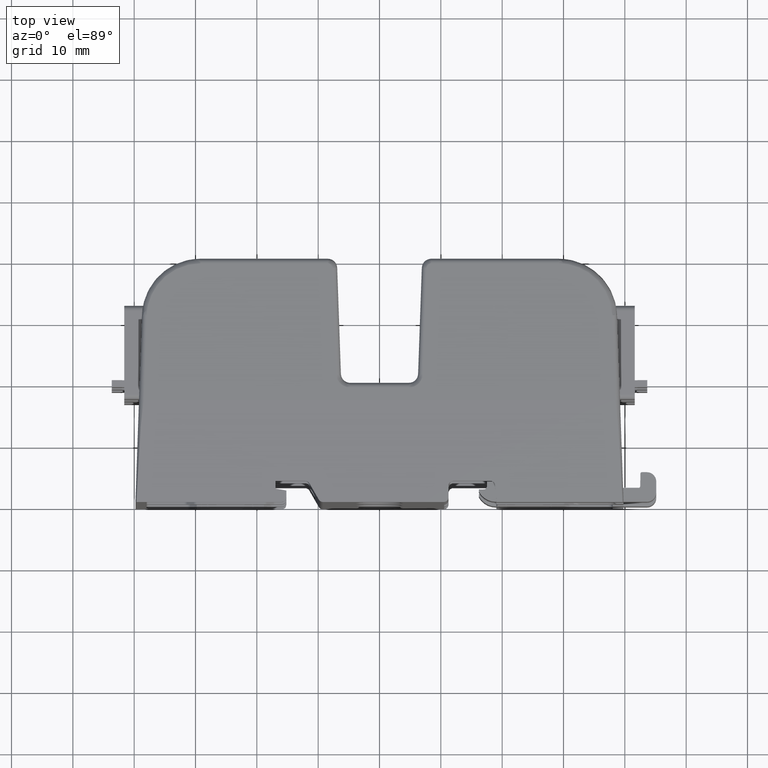
[diagram: clean part render]
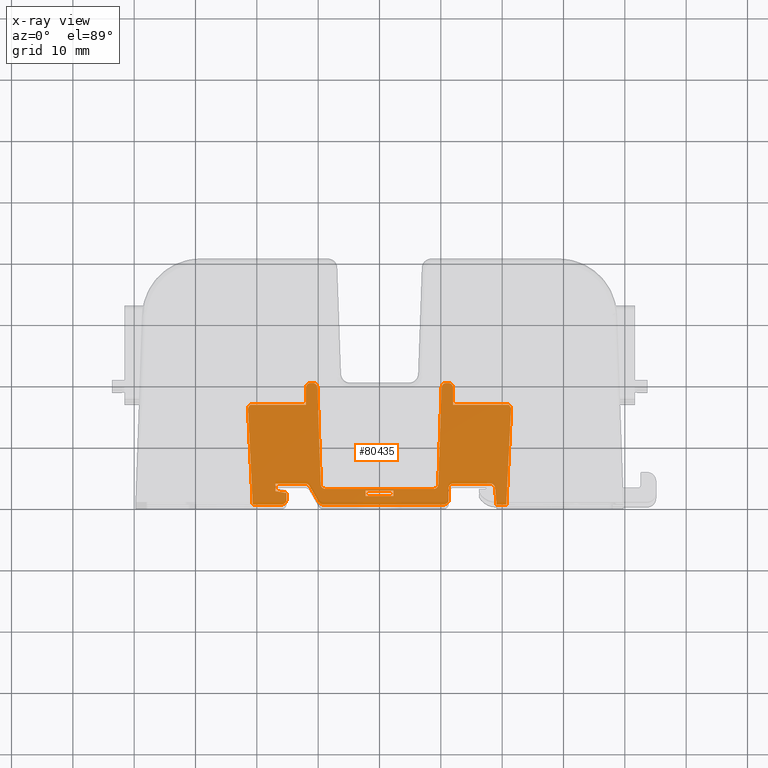
[diagram: x-ray — body ghosted, one internal face saturated and labeled with its STEP entity id]
A machine part, top view, then the same camera in x-ray: the body is ghosted and one INTERNAL B-rep face — a face not visible from any outside direction — is saturated and labeled: STEP entity #80435.
In plain terms, the highlighted planar face has unit normal (0, 0, -1).
Its self-contained STEP definition (entity closure, byte-faithful):
#1554 = EDGE_CURVE ( 'NONE', #28954, #16335, #105713, .T. ) ;
#1703 = CARTESIAN_POINT ( 'NONE',  ( 0.4729999999999999800, 0.1050000000000005400, -0.4840000000000001000 ) ) ;
#1868 = VERTEX_POINT ( 'NONE', #63186 ) ;
#2291 = EDGE_CURVE ( 'NONE', #42022, #96422, #143983, .T. ) ;
#2678 = CARTESIAN_POINT ( 'NONE',  ( 0.4429999999999999500, 0.6570000000000000300, -0.4840000000000001000 ) ) ;
#3123 = ORIENTED_EDGE ( 'NONE', *, *, #61029, .T. ) ;
#3698 = DIRECTION ( 'NONE',  ( -1.000000000000000000, 0.0000000000000000000, 0.0000000000000000000 ) ) ;
#4396 = LINE ( 'NONE', #117037, #34462 ) ;
#4732 = ORIENTED_EDGE ( 'NONE', *, *, #81388, .T. ) ;
#4996 = EDGE_CURVE ( 'NONE', #120095, #60454, #139707, .T. ) ;
#5239 = CARTESIAN_POINT ( 'NONE',  ( -0.4287167864986007300, 0.7799999999999996900, -0.4840000000000001000 ) ) ;
#5605 = DIRECTION ( 'NONE',  ( 0.0000000000000000000, 1.000000000000000000, 0.0000000000000000000 ) ) ;
#5805 = CARTESIAN_POINT ( 'NONE',  ( -0.8294316909269459100, 0.6400000000000000100, -0.4840000000000001000 ) ) ;
#6162 = AXIS2_PLACEMENT_3D ( 'NONE', #94046, #26275, #105451 ) ;
#6207 = CARTESIAN_POINT ( 'NONE',  ( 0.4719999999999999200, 0.7799999999999996900, -0.4840000000000001000 ) ) ;
#6665 = DIRECTION ( 'NONE',  ( 0.0000000000000000000, 0.0000000000000000000, -1.000000000000000000 ) ) ;
#7552 = CIRCLE ( 'NONE', #107451, 0.03000000000000002300 ) ;
#8727 = VECTOR ( 'NONE', #130806, 39.37007874015748100 ) ;
#9827 = VERTEX_POINT ( 'NONE', #132897 ) ;
#10054 = CARTESIAN_POINT ( 'NONE',  ( -0.3636794919243111500, 3.414809992080329000E-017, -0.4840000000000001000 ) ) ;
#10184 = EDGE_CURVE ( 'NONE', #118134, #66096, #104791, .T. ) ;
#10679 = VECTOR ( 'NONE', #143482, 39.37007874015748100 ) ;
#10991 = DIRECTION ( 'NONE',  ( -0.0000000000000000000, -0.0000000000000000000, 1.000000000000000000 ) ) ;
#11359 = VERTEX_POINT ( 'NONE', #97804 ) ;
#11376 = CARTESIAN_POINT ( 'NONE',  ( 0.08999999999999994100, 0.08899999999999982900, -0.4840000000000001000 ) ) ;
#13056 = DIRECTION ( 'NONE',  ( -1.000000000000000000, 0.0000000000000000000, 0.0000000000000000000 ) ) ;
#13221 = VERTEX_POINT ( 'NONE', #25499 ) ;
#13389 = CARTESIAN_POINT ( 'NONE',  ( -0.09000000000000005200, 0.08899999999999982900, -0.4840000000000001000 ) ) ;
#13500 = LINE ( 'NONE', #113197, #73643 ) ;
#13636 = CIRCLE ( 'NONE', #60235, 0.03000000000000002300 ) ;
#13720 = ORIENTED_EDGE ( 'NONE', *, *, #63365, .T. ) ;
#14055 = EDGE_CURVE ( 'NONE', #124613, #9827, #119136, .T. ) ;
#14151 = AXIS2_PLACEMENT_3D ( 'NONE', #74381, #6665, #85789 ) ;
#14738 = LINE ( 'NONE', #39213, #131560 ) ;
#14745 = ORIENTED_EDGE ( 'NONE', *, *, #129789, .T. ) ;
#15379 = VECTOR ( 'NONE', #87525, 39.37007874015748900 ) ;
#15409 = VERTEX_POINT ( 'NONE', #110213 ) ;
#16295 = CARTESIAN_POINT ( 'NONE',  ( -0.3470293367557876800, 0.1000000000000000500, -0.4840000000000001000 ) ) ;
#16335 = VERTEX_POINT ( 'NONE', #35645 ) ;
#17065 = CARTESIAN_POINT ( 'NONE',  ( -0.3987350616880282500, 0.7510469849010748000, -0.4840000000000001000 ) ) ;
#17424 = ORIENTED_EDGE ( 'NONE', *, *, #69208, .F. ) ;
#17521 = PLANE ( 'NONE',  #14151 ) ;
#17772 = DIRECTION ( 'NONE',  ( 1.000000000000000000, 0.0000000000000000000, 0.0000000000000000000 ) ) ;
#17871 = EDGE_CURVE ( 'NONE', #108640, #42022, #13636, .T. ) ;
#18053 = DIRECTION ( 'NONE',  ( 1.000000000000000000, 0.0000000000000000000, 0.0000000000000000000 ) ) ;
#18162 = CARTESIAN_POINT ( 'NONE',  ( 0.4419999999999998900, 0.7799999999999996900, -0.4840000000000001000 ) ) ;
#19452 = DIRECTION ( 'NONE',  ( -1.000000000000000000, -0.0000000000000000000, -0.0000000000000000000 ) ) ;
#20178 = CARTESIAN_POINT ( 'NONE',  ( -0.4720000000000000300, 0.6399999999999996800, -0.4840000000000001000 ) ) ;
#20296 = EDGE_CURVE ( 'NONE', #35639, #13221, #144172, .T. ) ;
#21326 = VERTEX_POINT ( 'NONE', #46580 ) ;
#22191 = CARTESIAN_POINT ( 'NONE',  ( 0.4719999999999999200, 0.7499999999999997800, -0.4840000000000001000 ) ) ;
#22479 = EDGE_CURVE ( 'NONE', #76344, #141496, #46259, .T. ) ;
#23130 = CARTESIAN_POINT ( 'NONE',  ( -0.4720000000000000300, 0.7499999999999997800, -0.4840000000000001000 ) ) ;
#24765 = DIRECTION ( 'NONE',  ( -0.0000000000000000000, 1.000000000000000000, -0.0000000000000000000 ) ) ;
#25499 = CARTESIAN_POINT ( 'NONE',  ( 0.8294316909269456900, 0.6400000000000000100, -0.4840000000000001000 ) ) ;
#26087 = DIRECTION ( 'NONE',  ( 1.000000000000000000, 0.0000000000000000000, 0.0000000000000000000 ) ) ;
#26275 = DIRECTION ( 'NONE',  ( 0.0000000000000000000, 0.0000000000000000000, -1.000000000000000000 ) ) ;
#27651 = CARTESIAN_POINT ( 'NONE',  ( 0.4719999999999999200, 0.6399999999999996800, -0.4840000000000001000 ) ) ;
#27726 = CIRCLE ( 'NONE', #62372, 0.03000000000000002300 ) ;
#27990 = CARTESIAN_POINT ( 'NONE',  ( 0.4287167864986007300, 0.7499999999999997800, -0.4840000000000001000 ) ) ;
#28954 = VERTEX_POINT ( 'NONE', #140425 ) ;
#29507 = ORIENTED_EDGE ( 'NONE', *, *, #98379, .F. ) ;
#30254 = ORIENTED_EDGE ( 'NONE', *, *, #14055, .T. ) ;
#30881 = EDGE_CURVE ( 'NONE', #15409, #106694, #13500, .T. ) ;
#30956 = EDGE_CURVE ( 'NONE', #90542, #13221, #64972, .T. ) ;
#31793 = CIRCLE ( 'NONE', #122397, 0.03000000000000002300 ) ;
#32065 = ORIENTED_EDGE ( 'NONE', *, *, #1554, .T. ) ;
#32900 = DIRECTION ( 'NONE',  ( -0.0000000000000000000, -0.0000000000000000000, 1.000000000000000000 ) ) ;
#33249 = DIRECTION ( 'NONE',  ( -0.0000000000000000000, -0.0000000000000000000, 1.000000000000000000 ) ) ;
#33603 = ORIENTED_EDGE ( 'NONE', *, *, #144572, .T. ) ;
#33710 = EDGE_CURVE ( 'NONE', #120095, #137839, #74375, .T. ) ;
#34212 = ORIENTED_EDGE ( 'NONE', *, *, #107886, .T. ) ;
#34462 = VECTOR ( 'NONE', #82791, 39.37007874015748100 ) ;
#35639 = VERTEX_POINT ( 'NONE', #145602 ) ;
#35645 = CARTESIAN_POINT ( 'NONE',  ( 0.7510000000000000000, 6.017718913256016400E-016, -0.4840000000000001000 ) ) ;
#36788 = CARTESIAN_POINT ( 'NONE',  ( -0.8139246220590630200, 3.414809992080329000E-017, -0.4840000000000001000 ) ) ;
#36891 = DIRECTION ( 'NONE',  ( 0.0000000000000000000, 0.0000000000000000000, -1.000000000000000000 ) ) ;
#37383 = VECTOR ( 'NONE', #19452, 39.37007874015748100 ) ;
#38392 = LINE ( 'NONE', #95356, #95079 ) ;
#39213 = CARTESIAN_POINT ( 'NONE',  ( -0.5980000000000000900, 0.6570000000000000300, -0.4840000000000001000 ) ) ;
#39343 = DIRECTION ( 'NONE',  ( -1.000000000000000000, 0.0000000000000000000, 0.0000000000000000000 ) ) ;
#39436 = CARTESIAN_POINT ( 'NONE',  ( -0.6680000000000000400, 0.1350000000000003100, -0.4840000000000001000 ) ) ;
#39740 = VECTOR ( 'NONE', #76811, 39.37007874015748100 ) ;
#40229 = CARTESIAN_POINT ( 'NONE',  ( -0.4720000000000000300, 0.7799999999999996900, -0.4840000000000001000 ) ) ;
#40532 = CARTESIAN_POINT ( 'NONE',  ( -0.3636794919243111500, 0.03000000000000003400, -0.4840000000000001000 ) ) ;
#40620 = ORIENTED_EDGE ( 'NONE', *, *, #45484, .T. ) ;
#40678 = DIRECTION ( 'NONE',  ( 0.0000000000000000000, 0.0000000000000000000, -1.000000000000000000 ) ) ;
#41179 = VERTEX_POINT ( 'NONE', #39436 ) ;
#41383 = CARTESIAN_POINT ( 'NONE',  ( 0.8480670914032886200, 0.6913470679808947400, -0.4840000000000001000 ) ) ;
#41446 = CARTESIAN_POINT ( 'NONE',  ( -0.3770110615663609900, 0.1289530150989249600, -0.4840000000000001000 ) ) ;
#41567 = EDGE_CURVE ( 'NONE', #106694, #11359, #65887, .T. ) ;
#41962 = EDGE_CURVE ( 'NONE', #21326, #113728, #94097, .T. ) ;
#42022 = VERTEX_POINT ( 'NONE', #10054 ) ;
#42647 = CARTESIAN_POINT ( 'NONE',  ( -0.8360173988094451400, 0.6335520826327228900, -0.4840000000000001000 ) ) ;
#42905 = CARTESIAN_POINT ( 'NONE',  ( 0.3770110615663606600, 0.1289530150989250100, -0.4840000000000001000 ) ) ;
#43465 = ORIENTED_EDGE ( 'NONE', *, *, #33710, .F. ) ;
#43502 = CARTESIAN_POINT ( 'NONE',  ( 0.8360167133168319200, 0.6335529157044670300, -0.4839999999999998700 ) ) ;
#44711 = LINE ( 'NONE', #63340, #101407 ) ;
#44950 = VECTOR ( 'NONE', #52752, 39.37007874015748100 ) ;
#45210 = LINE ( 'NONE', #135123, #128418 ) ;
#45376 = LINE ( 'NONE', #52881, #102075 ) ;
#45484 = EDGE_CURVE ( 'NONE', #116642, #108640, #44711, .T. ) ;
#46013 = ORIENTED_EDGE ( 'NONE', *, *, #109696, .T. ) ;
#46229 = VERTEX_POINT ( 'NONE', #101344 ) ;
#46259 = CIRCLE ( 'NONE', #93480, 0.03000000000000002300 ) ;
#46580 = CARTESIAN_POINT ( 'NONE',  ( 0.08999999999999994100, 0.05400000000000003400, -0.4840000000000001000 ) ) ;
#46706 = DIRECTION ( 'NONE',  ( 1.000000000000000000, -0.0000000000000000000, 0.0000000000000000000 ) ) ;
#47403 = VERTEX_POINT ( 'NONE', #122239 ) ;
#47418 = CARTESIAN_POINT ( 'NONE',  ( -0.5980000000000000900, 0.02999999999999998800, -0.4840000000000001000 ) ) ;
#48215 = CARTESIAN_POINT ( 'NONE',  ( -1.566500000000000400, 3.414809992080329000E-017, -0.4840000000000001000 ) ) ;
#48473 = LINE ( 'NONE', #41383, #44950 ) ;
#48605 = VERTEX_POINT ( 'NONE', #81713 ) ;
#49155 = VERTEX_POINT ( 'NONE', #47418 ) ;
#49694 = CARTESIAN_POINT ( 'NONE',  ( -0.4420000000000000000, 0.7799999999999996900, -0.4840000000000001000 ) ) ;
#50004 = EDGE_CURVE ( 'NONE', #76344, #106445, #129892, .T. ) ;
#50125 = CARTESIAN_POINT ( 'NONE',  ( 0.4419999999999998900, 0.7499999999999997800, -0.4840000000000001000 ) ) ;
#50340 = CARTESIAN_POINT ( 'NONE',  ( 0.4730000000000000300, 0.1350000000000005400, -0.4840000000000001000 ) ) ;
#51654 = ORIENTED_EDGE ( 'NONE', *, *, #84419, .T. ) ;
#51858 = CARTESIAN_POINT ( 'NONE',  ( -0.09000000000000017700, 0.08899999999999982900, -0.4840000000000001000 ) ) ;
#51874 = DIRECTION ( 'NONE',  ( -1.000000000000000000, 0.0000000000000000000, 0.0000000000000000000 ) ) ;
#52752 = DIRECTION ( 'NONE',  ( 0.04932531220227795400, 0.9987827659587182900, 0.0000000000000000000 ) ) ;
#52802 = CARTESIAN_POINT ( 'NONE',  ( 0.4129999999999998700, 0.03000000000000003400, -0.4840000000000001000 ) ) ;
#52881 = CARTESIAN_POINT ( 'NONE',  ( -0.6680000000000014800, 0.6569999999999938100, -0.4840000000000001000 ) ) ;
#53383 = CARTESIAN_POINT ( 'NONE',  ( 0.6999769348979284500, 0.5831963027638829000, -0.4840000000000001000 ) ) ;
#53480 = ORIENTED_EDGE ( 'NONE', *, *, #75781, .T. ) ;
#53506 = CARTESIAN_POINT ( 'NONE',  ( -0.8331000808981733300, 0.6370878541714241100, -0.4839999999999999300 ) ) ;
#54020 = CARTESIAN_POINT ( 'NONE',  ( -0.8426502180722170700, 0.6212386858823721900, -0.4840000000000001000 ) ) ;
#54593 = DIRECTION ( 'NONE',  ( -0.9848077530122085800, 0.1736481776669269500, 0.0000000000000000000 ) ) ;
#54836 = CARTESIAN_POINT ( 'NONE',  ( 0.8294316909269456900, 0.6400000000000000100, -0.4840000000000001000 ) ) ;
#55197 = CIRCLE ( 'NONE', #141175, 0.02999999999999995400 ) ;
#57261 = VECTOR ( 'NONE', #26087, 39.37007874015748100 ) ;
#57337 = VERTEX_POINT ( 'NONE', #51858 ) ;
#58110 = CARTESIAN_POINT ( 'NONE',  ( 1.543557054443924300, 0.6400000000000000100, -0.4840000000000001000 ) ) ;
#58122 = ORIENTED_EDGE ( 'NONE', *, *, #41567, .T. ) ;
#60235 = AXIS2_PLACEMENT_3D ( 'NONE', #40532, #119769, #51874 ) ;
#60369 = ORIENTED_EDGE ( 'NONE', *, *, #30881, .T. ) ;
#60454 = VERTEX_POINT ( 'NONE', #23130 ) ;
#60569 = EDGE_CURVE ( 'NONE', #1868, #28954, #55197, .T. ) ;
#61029 = EDGE_CURVE ( 'NONE', #48605, #116642, #31793, .T. ) ;
#61417 = VECTOR ( 'NONE', #46706, 39.37007874015748100 ) ;
#61461 = DIRECTION ( 'NONE',  ( -1.000000000000000000, 0.0000000000000000000, 0.0000000000000000000 ) ) ;
#62043 = CARTESIAN_POINT ( 'NONE',  ( -1.566500000000000400, 3.414809992080329000E-017, -0.4840000000000001000 ) ) ;
#62372 = AXIS2_PLACEMENT_3D ( 'NONE', #50125, #129307, #61461 ) ;
#62404 = ORIENTED_EDGE ( 'NONE', *, *, #80371, .T. ) ;
#63186 = CARTESIAN_POINT ( 'NONE',  ( 0.7116990952034777400, 0.1350000000000005900, -0.4840000000000001000 ) ) ;
#63340 = CARTESIAN_POINT ( 'NONE',  ( -0.1843500815322003100, -0.3406076500905025900, -0.4840000000000001000 ) ) ;
#63365 = EDGE_CURVE ( 'NONE', #119479, #1868, #45210, .T. ) ;
#63560 = EDGE_CURVE ( 'NONE', #89072, #106445, #82245, .T. ) ;
#64116 = DIRECTION ( 'NONE',  ( -1.000000000000000000, 0.0000000000000000000, 0.0000000000000000000 ) ) ;
#64206 = DIRECTION ( 'NONE',  ( -2.787599993534962000E-015, 1.000000000000000000, 0.0000000000000000000 ) ) ;
#64278 = CARTESIAN_POINT ( 'NONE',  ( -1.566500000000000400, 3.414809992080329000E-017, -0.4840000000000001000 ) ) ;
#64397 = CARTESIAN_POINT ( 'NONE',  ( 0.08999999999999994100, 0.05400000000000003400, -0.4840000000000001000 ) ) ;
#64504 = AXIS2_PLACEMENT_3D ( 'NONE', #1703, #80767, #13056 ) ;
#64972 = LINE ( 'NONE', #58110, #61417 ) ;
#65359 = ORIENTED_EDGE ( 'NONE', *, *, #2291, .T. ) ;
#65887 = LINE ( 'NONE', #48215, #119109 ) ;
#65957 = VERTEX_POINT ( 'NONE', #11376 ) ;
#66096 = VERTEX_POINT ( 'NONE', #70624 ) ;
#66573 = FACE_OUTER_BOUND ( 'NONE', #68473, .T. ) ;
#66649 = EDGE_CURVE ( 'NONE', #47403, #46229, #73215, .T. ) ;
#67436 = CARTESIAN_POINT ( 'NONE',  ( 0.3470293367557877900, 0.1000000000000000500, -0.4840000000000001000 ) ) ;
#68242 = ORIENTED_EDGE ( 'NONE', *, *, #130411, .F. ) ;
#68473 = EDGE_LOOP ( 'NONE', ( #68242, #51654, #60369, #58122, #33603, #53480, #130206, #120670, #90985, #3123, #40620, #83896, #65359, #136069, #30254, #129277, #13720, #136118, #32065, #138826, #4732, #103287, #107698, #88045, #62404, #17424, #117237, #46013, #141458, #139161, #123847, #74357, #34212, #43465, #111970, #29507 ) ) ;
#69208 = EDGE_CURVE ( 'NONE', #118134, #118245, #141236, .T. ) ;
#70452 = DIRECTION ( 'NONE',  ( 1.000000000000000000, 0.0000000000000000000, 0.0000000000000000000 ) ) ;
#70624 = CARTESIAN_POINT ( 'NONE',  ( 0.3987350616880278600, 0.7510469849010749100, -0.4840000000000001000 ) ) ;
#71397 = DIRECTION ( 'NONE',  ( 0.0000000000000000000, 0.0000000000000000000, -1.000000000000000000 ) ) ;
#71691 = VECTOR ( 'NONE', #132016, 39.37007874015748100 ) ;
#71976 = VERTEX_POINT ( 'NONE', #119238 ) ;
#72409 = LINE ( 'NONE', #142131, #8727 ) ;
#73215 = LINE ( 'NONE', #133763, #103398 ) ;
#73643 = VECTOR ( 'NONE', #89792, 39.37007874015748100 ) ;
#74154 = VECTOR ( 'NONE', #24765, 39.37007874015748100 ) ;
#74357 = ORIENTED_EDGE ( 'NONE', *, *, #131015, .F. ) ;
#74375 = LINE ( 'NONE', #40229, #101029 ) ;
#74381 = CARTESIAN_POINT ( 'NONE',  ( 1.543557054443924300, 0.6570000000000000300, -0.4840000000000001000 ) ) ;
#74753 = DIRECTION ( 'NONE',  ( 0.5000000000000044400, -0.8660254037844360400, 0.0000000000000000000 ) ) ;
#75216 = LINE ( 'NONE', #27651, #71691 ) ;
#75423 = VECTOR ( 'NONE', #115866, 39.37007874015748100 ) ;
#75781 = EDGE_CURVE ( 'NONE', #49155, #47403, #14738, .T. ) ;
#76344 = VERTEX_POINT ( 'NONE', #16295 ) ;
#76811 = DIRECTION ( 'NONE',  ( -0.0000000000000000000, 1.000000000000000000, 0.0000000000000000000 ) ) ;
#78677 = VECTOR ( 'NONE', #93260, 39.37007874015748100 ) ;
#78722 = CARTESIAN_POINT ( 'NONE',  ( -0.6280000000000000000, 0.03000000000000003400, -0.4840000000000001000 ) ) ;
#79011 = LINE ( 'NONE', #103447, #75423 ) ;
#79996 = DIRECTION ( 'NONE',  ( 1.000000000000000000, -0.0000000000000000000, 0.0000000000000000000 ) ) ;
#80371 = EDGE_CURVE ( 'NONE', #131907, #118245, #27726, .T. ) ;
#80435 = ADVANCED_FACE ( 'NONE', ( #66573, #93190 ), #17521, .F. ) ;
#80767 = DIRECTION ( 'NONE',  ( 0.0000000000000000000, 0.0000000000000000000, -1.000000000000000000 ) ) ;
#80995 = CARTESIAN_POINT ( 'NONE',  ( 1.543557054443924300, 0.6400000000000000100, -0.4840000000000001000 ) ) ;
#81019 = VECTOR ( 'NONE', #18053, 39.37007874015748100 ) ;
#81388 = EDGE_CURVE ( 'NONE', #71976, #35639, #48473, .T. ) ;
#81713 = CARTESIAN_POINT ( 'NONE',  ( -0.4762627944162891600, 0.1350000000000002600, -0.4840000000000001000 ) ) ;
#82245 = CIRCLE ( 'NONE', #6162, 0.03000000000000002300 ) ;
#82791 = DIRECTION ( 'NONE',  ( 0.03489949670250104600, -0.9993908270190957600, 0.0000000000000000000 ) ) ;
#83896 = ORIENTED_EDGE ( 'NONE', *, *, #17871, .T. ) ;
#84419 = EDGE_CURVE ( 'NONE', #120595, #15409, #123397, .T. ) ;
#85410 = VECTOR ( 'NONE', #93199, 39.37007874015748100 ) ;
#85789 = DIRECTION ( 'NONE',  ( -1.000000000000000000, 0.0000000000000000000, -0.0000000000000000000 ) ) ;
#87525 = DIRECTION ( 'NONE',  ( 0.08715574274765672300, -0.9961946980917456600, 0.0000000000000000000 ) ) ;
#87899 = EDGE_CURVE ( 'NONE', #21326, #65957, #138881, .T. ) ;
#88045 = ORIENTED_EDGE ( 'NONE', *, *, #141502, .F. ) ;
#88474 = CARTESIAN_POINT ( 'NONE',  ( 0.8426240470695945900, 0.6213022487488072400, -0.4839999999999999300 ) ) ;
#89003 = CARTESIAN_POINT ( 'NONE',  ( 0.4287167864986007300, 0.7799999999999996900, -0.4840000000000001000 ) ) ;
#89072 = VERTEX_POINT ( 'NONE', #42905 ) ;
#89792 = DIRECTION ( 'NONE',  ( 0.04932531220227787100, -0.9987827659587182900, 0.0000000000000000000 ) ) ;
#90047 = VERTEX_POINT ( 'NONE', #17065 ) ;
#90097 = DIRECTION ( 'NONE',  ( 1.000000000000000000, 2.305831507123651300E-016, 0.0000000000000000000 ) ) ;
#90114 = DIRECTION ( 'NONE',  ( -1.000000000000000000, 0.0000000000000000000, 0.0000000000000000000 ) ) ;
#90542 = VERTEX_POINT ( 'NONE', #97511 ) ;
#90985 = ORIENTED_EDGE ( 'NONE', *, *, #97465, .T. ) ;
#93190 = FACE_BOUND ( 'NONE', #104894, .T. ) ;
#93199 = DIRECTION ( 'NONE',  ( 0.0000000000000000000, 1.000000000000000000, 0.0000000000000000000 ) ) ;
#93260 = DIRECTION ( 'NONE',  ( -0.0000000000000000000, 1.000000000000000000, -0.0000000000000000000 ) ) ;
#93480 = AXIS2_PLACEMENT_3D ( 'NONE', #139199, #71397, #3698 ) ;
#94046 = CARTESIAN_POINT ( 'NONE',  ( 0.3470293367557877900, 0.1300000000000000600, -0.4840000000000001000 ) ) ;
#94097 = LINE ( 'NONE', #64397, #37383 ) ;
#95079 = VECTOR ( 'NONE', #106775, 39.37007874015748100 ) ;
#95356 = CARTESIAN_POINT ( 'NONE',  ( 0.3760000000000000600, 0.1000000000000000500, -0.4840000000000001000 ) ) ;
#95619 = VERTEX_POINT ( 'NONE', #20178 ) ;
#96422 = VERTEX_POINT ( 'NONE', #131647 ) ;
#96686 = CIRCLE ( 'NONE', #115315, 0.03000000000000002300 ) ;
#97394 = LINE ( 'NONE', #64278, #10679 ) ;
#97465 = EDGE_CURVE ( 'NONE', #41179, #48605, #79011, .T. ) ;
#97511 = CARTESIAN_POINT ( 'NONE',  ( 0.4719999999999999200, 0.6399999999999996800, -0.4840000000000001000 ) ) ;
#97658 = EDGE_CURVE ( 'NONE', #96422, #124613, #96686, .T. ) ;
#97804 = CARTESIAN_POINT ( 'NONE',  ( -0.6280000000000000000, 3.414809992080329000E-017, -0.4840000000000001000 ) ) ;
#98379 = EDGE_CURVE ( 'NONE', #95619, #60454, #126507, .T. ) ;
#98673 = LINE ( 'NONE', #80995, #125216 ) ;
#99078 = CARTESIAN_POINT ( 'NONE',  ( -0.8294316909269459100, 0.6400000000000000100, -0.4840000000000001000 ) ) ;
#99432 = AXIS2_PLACEMENT_3D ( 'NONE', #78722, #10991, #90114 ) ;
#99951 = CARTESIAN_POINT ( 'NONE',  ( 0.8443954297923060800, 0.6169999999999999900, -0.4840000000000001000 ) ) ;
#100782 = CARTESIAN_POINT ( 'NONE',  ( -0.4287167864986007300, 0.7499999999999997800, -0.4840000000000001000 ) ) ;
#101029 = VECTOR ( 'NONE', #130795, 39.37007874015748100 ) ;
#101127 = CARTESIAN_POINT ( 'NONE',  ( -0.4420000000000000000, 0.7499999999999997800, -0.4840000000000001000 ) ) ;
#101344 = CARTESIAN_POINT ( 'NONE',  ( -0.6679999999999999300, 0.08600000000000029800, -0.4840000000000001000 ) ) ;
#101407 = VECTOR ( 'NONE', #74753, 39.37007874015748100 ) ;
#102075 = VECTOR ( 'NONE', #64206, 39.37007874015748100 ) ;
#103287 = ORIENTED_EDGE ( 'NONE', *, *, #20296, .T. ) ;
#103398 = VECTOR ( 'NONE', #54593, 39.37007874015748900 ) ;
#103447 = CARTESIAN_POINT ( 'NONE',  ( 1.543557054443924300, 0.1350000000000004300, -0.4840000000000001000 ) ) ;
#104737 = CARTESIAN_POINT ( 'NONE',  ( 0.7116990952034777400, 0.1050000000000006100, -0.4840000000000001000 ) ) ;
#104791 = CIRCLE ( 'NONE', #117637, 0.03000000000000002300 ) ;
#104894 = EDGE_LOOP ( 'NONE', ( #106602, #106876, #14745, #144107 ) ) ;
#105451 = DIRECTION ( 'NONE',  ( -1.000000000000000000, 0.0000000000000000000, 0.0000000000000000000 ) ) ;
#105713 = LINE ( 'NONE', #53383, #15379 ) ;
#106445 = VERTEX_POINT ( 'NONE', #67436 ) ;
#106602 = ORIENTED_EDGE ( 'NONE', *, *, #87899, .F. ) ;
#106694 = VERTEX_POINT ( 'NONE', #36788 ) ;
#106775 = DIRECTION ( 'NONE',  ( -0.03489949670250104600, -0.9993908270190957600, 0.0000000000000000000 ) ) ;
#106876 = ORIENTED_EDGE ( 'NONE', *, *, #41962, .T. ) ;
#107231 = DIRECTION ( 'NONE',  ( -0.0000000000000000000, -0.0000000000000000000, 1.000000000000000000 ) ) ;
#107451 = AXIS2_PLACEMENT_3D ( 'NONE', #100782, #32900, #112182 ) ;
#107698 = ORIENTED_EDGE ( 'NONE', *, *, #30956, .F. ) ;
#107886 = EDGE_CURVE ( 'NONE', #90047, #137839, #7552, .T. ) ;
#108560 = CARTESIAN_POINT ( 'NONE',  ( -0.4762627944162891600, 0.1050000000000003200, -0.4840000000000001000 ) ) ;
#108640 = VERTEX_POINT ( 'NONE', #117582 ) ;
#108832 = EDGE_CURVE ( 'NONE', #65957, #57337, #72409, .T. ) ;
#108891 = CARTESIAN_POINT ( 'NONE',  ( -0.3760000000000000600, 0.1000000000000000500, -0.4840000000000001000 ) ) ;
#109696 = EDGE_CURVE ( 'NONE', #66096, #89072, #38392, .T. ) ;
#110213 = CARTESIAN_POINT ( 'NONE',  ( -0.8443954297923067500, 0.6169999999999999900, -0.4840000000000001000 ) ) ;
#111347 = CARTESIAN_POINT ( 'NONE',  ( 0.8408167980981540200, 0.6256237725719483400, -0.4840000000000001000 ) ) ;
#111970 = ORIENTED_EDGE ( 'NONE', *, *, #4996, .T. ) ;
#112182 = DIRECTION ( 'NONE',  ( -1.000000000000000000, 0.0000000000000000000, 0.0000000000000000000 ) ) ;
#112561 = DIRECTION ( 'NONE',  ( -1.000000000000000000, 0.0000000000000000000, 0.0000000000000000000 ) ) ;
#113197 = CARTESIAN_POINT ( 'NONE',  ( -0.8405561846874826100, 0.5392595524734943300, -0.4840000000000001000 ) ) ;
#113728 = VERTEX_POINT ( 'NONE', #131564 ) ;
#115315 = AXIS2_PLACEMENT_3D ( 'NONE', #52802, #131994, #64116 ) ;
#115641 = CARTESIAN_POINT ( 'NONE',  ( 0.08999999999999994100, 0.08899999999999982900, -0.4840000000000001000 ) ) ;
#115866 = DIRECTION ( 'NONE',  ( 1.000000000000000000, 8.167146603458491300E-017, 0.0000000000000000000 ) ) ;
#116183 = DIRECTION ( 'NONE',  ( -1.000000000000000000, 0.0000000000000000000, 0.0000000000000000000 ) ) ;
#116642 = VERTEX_POINT ( 'NONE', #133019 ) ;
#117037 = CARTESIAN_POINT ( 'NONE',  ( -0.3930892056837266800, 0.5893708223630268500, -0.4840000000000001000 ) ) ;
#117237 = ORIENTED_EDGE ( 'NONE', *, *, #10184, .T. ) ;
#117582 = CARTESIAN_POINT ( 'NONE',  ( -0.3896602540378444900, 0.01499999999999980500, -0.4840000000000001000 ) ) ;
#117637 = AXIS2_PLACEMENT_3D ( 'NONE', #27990, #107231, #39343 ) ;
#118134 = VERTEX_POINT ( 'NONE', #89003 ) ;
#118245 = VERTEX_POINT ( 'NONE', #18162 ) ;
#119109 = VECTOR ( 'NONE', #70452, 39.37007874015748100 ) ;
#119136 = LINE ( 'NONE', #2678, #85410 ) ;
#119238 = CARTESIAN_POINT ( 'NONE',  ( 0.8139246220590624600, 3.414809992080329000E-017, -0.4840000000000001000 ) ) ;
#119479 = VERTEX_POINT ( 'NONE', #50340 ) ;
#119769 = DIRECTION ( 'NONE',  ( -0.0000000000000000000, -0.0000000000000000000, 1.000000000000000000 ) ) ;
#119915 = DIRECTION ( 'NONE',  ( -1.000000000000000000, 0.0000000000000000000, 0.0000000000000000000 ) ) ;
#120095 = VERTEX_POINT ( 'NONE', #49694 ) ;
#120595 = VERTEX_POINT ( 'NONE', #5805 ) ;
#120670 = ORIENTED_EDGE ( 'NONE', *, *, #144951, .T. ) ;
#121888 = CARTESIAN_POINT ( 'NONE',  ( -0.8408178073317856800, 0.6256218060610163600, -0.4839999999999998700 ) ) ;
#122239 = CARTESIAN_POINT ( 'NONE',  ( -0.5980000000000000900, 0.07365711135040800600, -0.4840000000000001000 ) ) ;
#122397 = AXIS2_PLACEMENT_3D ( 'NONE', #108560, #40678, #119915 ) ;
#122698 = CARTESIAN_POINT ( 'NONE',  ( 0.8330996492154276700, 0.6370881968621184800, -0.4840000000000001000 ) ) ;
#123397 = B_SPLINE_CURVE_WITH_KNOTS ( 'NONE', 3,
 ( #99078, #53506, #42647, #121888, #54020, #133147 ),
 .UNSPECIFIED., .F., .F.,
 ( 4, 2, 4 ),
 ( 0.0000000000000000000, 0.0003492938677705342300, 0.0006985877355410684500 ),
 .UNSPECIFIED. ) ;
#123847 = ORIENTED_EDGE ( 'NONE', *, *, #22479, .T. ) ;
#124613 = VERTEX_POINT ( 'NONE', #125375 ) ;
#124626 = EDGE_CURVE ( 'NONE', #9827, #119479, #126356, .T. ) ;
#125216 = VECTOR ( 'NONE', #79996, 39.37007874015748100 ) ;
#125375 = CARTESIAN_POINT ( 'NONE',  ( 0.4429999999999999500, 0.02999999999999998800, -0.4840000000000001000 ) ) ;
#125410 = EDGE_CURVE ( 'NONE', #16335, #71976, #97394, .T. ) ;
#126349 = VECTOR ( 'NONE', #17772, 39.37007874015748100 ) ;
#126356 = CIRCLE ( 'NONE', #64504, 0.03000000000000002300 ) ;
#126507 = LINE ( 'NONE', #144654, #39740 ) ;
#128418 = VECTOR ( 'NONE', #90097, 39.37007874015748100 ) ;
#129277 = ORIENTED_EDGE ( 'NONE', *, *, #124626, .T. ) ;
#129307 = DIRECTION ( 'NONE',  ( -0.0000000000000000000, -0.0000000000000000000, 1.000000000000000000 ) ) ;
#129789 = EDGE_CURVE ( 'NONE', #113728, #57337, #134382, .T. ) ;
#129892 = LINE ( 'NONE', #108891, #126349 ) ;
#130206 = ORIENTED_EDGE ( 'NONE', *, *, #66649, .T. ) ;
#130411 = EDGE_CURVE ( 'NONE', #120595, #95619, #98673, .T. ) ;
#130795 = DIRECTION ( 'NONE',  ( 1.000000000000000000, 0.0000000000000000000, 0.0000000000000000000 ) ) ;
#130806 = DIRECTION ( 'NONE',  ( -1.000000000000000000, -0.0000000000000000000, -0.0000000000000000000 ) ) ;
#131015 = EDGE_CURVE ( 'NONE', #90047, #141496, #4396, .T. ) ;
#131560 = VECTOR ( 'NONE', #5605, 39.37007874015748100 ) ;
#131564 = CARTESIAN_POINT ( 'NONE',  ( -0.09000000000000005200, 0.05400000000000003400, -0.4840000000000001000 ) ) ;
#131647 = CARTESIAN_POINT ( 'NONE',  ( 0.4129999999999998700, 3.414809992080329000E-017, -0.4840000000000001000 ) ) ;
#131907 = VERTEX_POINT ( 'NONE', #22191 ) ;
#131994 = DIRECTION ( 'NONE',  ( -0.0000000000000000000, -0.0000000000000000000, 1.000000000000000000 ) ) ;
#132016 = DIRECTION ( 'NONE',  ( 0.0000000000000000000, -1.000000000000000000, 0.0000000000000000000 ) ) ;
#132897 = CARTESIAN_POINT ( 'NONE',  ( 0.4429999999999999500, 0.1050000000000005500, -0.4840000000000001000 ) ) ;
#133019 = CARTESIAN_POINT ( 'NONE',  ( -0.4502820323027562600, 0.1200000000000004000, -0.4840000000000001000 ) ) ;
#133147 = CARTESIAN_POINT ( 'NONE',  ( -0.8443954297923067500, 0.6169999999999999900, -0.4840000000000001000 ) ) ;
#133763 = CARTESIAN_POINT ( 'NONE',  ( 1.379223698556475600, -0.2749807736012726500, -0.4840000000000001000 ) ) ;
#134382 = LINE ( 'NONE', #13389, #74154 ) ;
#135123 = CARTESIAN_POINT ( 'NONE',  ( 1.543557054443924300, 0.1350000000000007900, -0.4840000000000001000 ) ) ;
#135462 = AXIS2_PLACEMENT_3D ( 'NONE', #101127, #33249, #112561 ) ;
#136069 = ORIENTED_EDGE ( 'NONE', *, *, #97658, .T. ) ;
#136118 = ORIENTED_EDGE ( 'NONE', *, *, #60569, .T. ) ;
#137839 = VERTEX_POINT ( 'NONE', #5239 ) ;
#138826 = ORIENTED_EDGE ( 'NONE', *, *, #125410, .T. ) ;
#138881 = LINE ( 'NONE', #115641, #78677 ) ;
#139161 = ORIENTED_EDGE ( 'NONE', *, *, #50004, .F. ) ;
#139199 = CARTESIAN_POINT ( 'NONE',  ( -0.3470293367557876800, 0.1300000000000000600, -0.4840000000000001000 ) ) ;
#139464 = CIRCLE ( 'NONE', #99432, 0.02999999999999995400 ) ;
#139707 = CIRCLE ( 'NONE', #135462, 0.03000000000000002300 ) ;
#140425 = CARTESIAN_POINT ( 'NONE',  ( 0.7415849361462298900, 0.1076146722824300600, -0.4840000000000001000 ) ) ;
#141175 = AXIS2_PLACEMENT_3D ( 'NONE', #104737, #36891, #116183 ) ;
#141236 = LINE ( 'NONE', #6207, #81019 ) ;
#141458 = ORIENTED_EDGE ( 'NONE', *, *, #63560, .T. ) ;
#141496 = VERTEX_POINT ( 'NONE', #41446 ) ;
#141502 = EDGE_CURVE ( 'NONE', #131907, #90542, #75216, .T. ) ;
#142131 = CARTESIAN_POINT ( 'NONE',  ( 0.08999999999999994100, 0.08899999999999982900, -0.4840000000000001000 ) ) ;
#143482 = DIRECTION ( 'NONE',  ( 1.000000000000000000, 0.0000000000000000000, 0.0000000000000000000 ) ) ;
#143983 = LINE ( 'NONE', #62043, #57261 ) ;
#144107 = ORIENTED_EDGE ( 'NONE', *, *, #108832, .F. ) ;
#144172 = B_SPLINE_CURVE_WITH_KNOTS ( 'NONE', 3,
 ( #99951, #88474, #111347, #43502, #122698, #54836 ),
 .UNSPECIFIED., .F., .F.,
 ( 4, 2, 4 ),
 ( -5.520869497234635500E-006, 0.0003490109706251383400, 0.0007035428107475113700 ),
 .UNSPECIFIED. ) ;
#144572 = EDGE_CURVE ( 'NONE', #11359, #49155, #139464, .T. ) ;
#144654 = CARTESIAN_POINT ( 'NONE',  ( -0.4720000000000000300, 0.6399999999999996800, -0.4840000000000001000 ) ) ;
#144951 = EDGE_CURVE ( 'NONE', #46229, #41179, #45376, .T. ) ;
#145602 = CARTESIAN_POINT ( 'NONE',  ( 0.8443954297923060800, 0.6169999999999999900, -0.4840000000000001000 ) ) ;